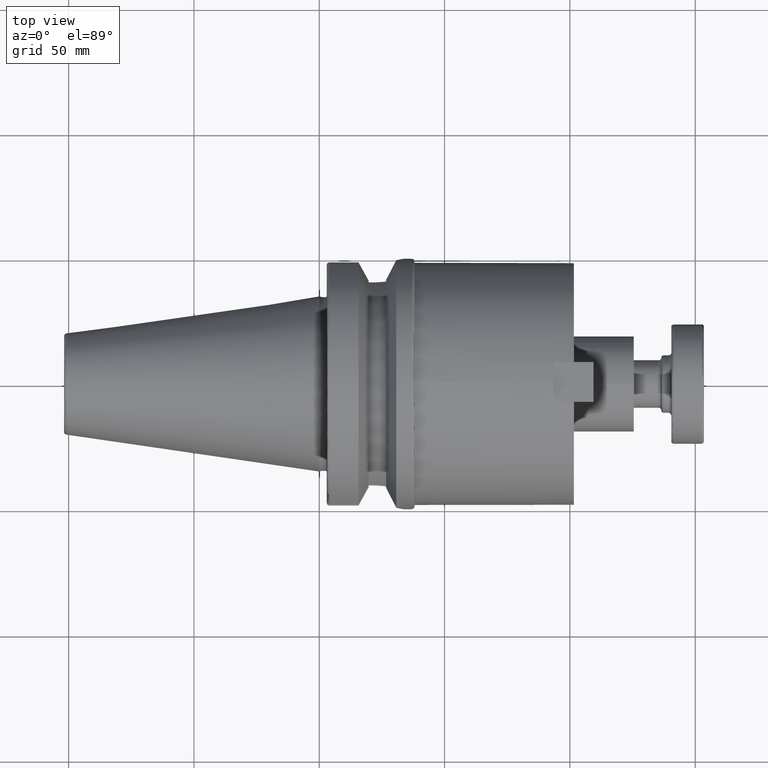
[diagram: clean part render]
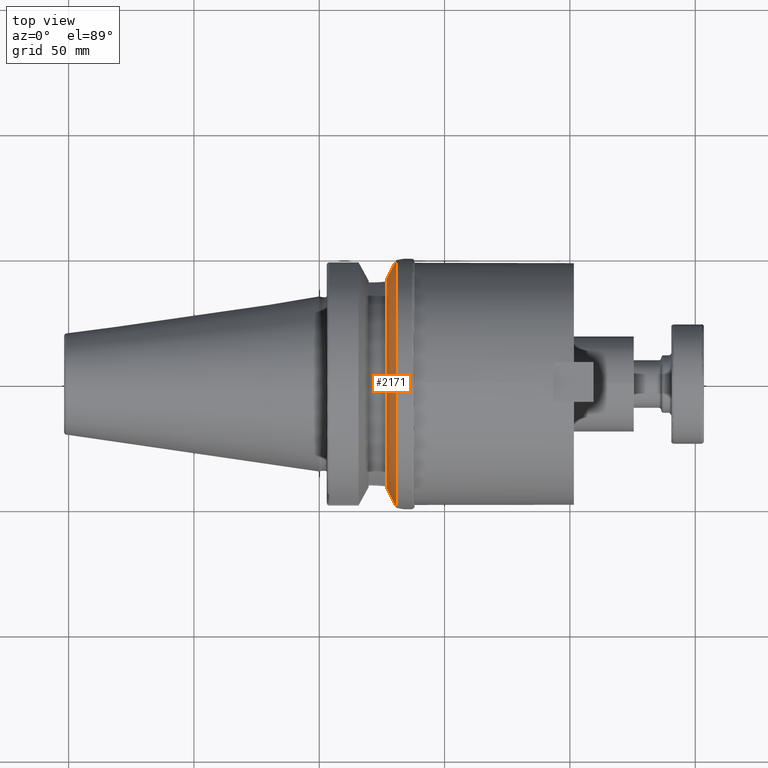
[diagram: same view with one face highlighted and labeled with its STEP entity id]
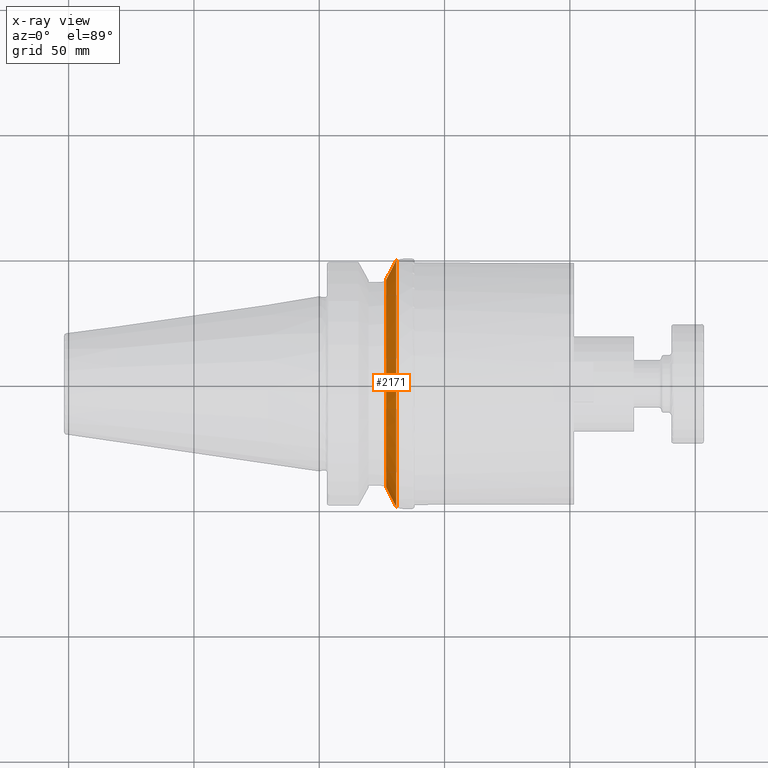
[diagram: x-ray of the same camera — body ghosted, the highlighted face saturated]
A machine part, top view. The second image highlights one B-rep face of the part: STEP entity #2171.
The next image is the same camera in x-ray: the body ghosted, the highlighted face saturated — about 0% of this face is hidden behind the body in this view.
In plain terms, the highlighted conical surface has half-angle 60.125 deg.
Its self-contained STEP definition (entity closure, byte-faithful):
#467=B_SPLINE_CURVE_WITH_KNOTS('',3,(#3512,#3513,#3514,#3515,#3516,#3517),
 .UNSPECIFIED.,.F.,.F.,(4,2,4),(1.70597184072793,2.24802424732131,2.60708937353861),
 .UNSPECIFIED.);
#476=B_SPLINE_CURVE_WITH_KNOTS('',3,(#3671,#3672,#3673,#3674,#3675,#3676),
 .UNSPECIFIED.,.F.,.F.,(4,2,4),(4.84387686434585,5.20294199056316,5.74499439715654),
 .UNSPECIFIED.);
#515=CONICAL_SURFACE('',#2461,46.4904524201025,1.04937921276159);
#566=CIRCLE('',#2440,50.);
#576=CIRCLE('',#2462,42.9809048402051);
#704=FACE_OUTER_BOUND('',#817,.T.);
#817=EDGE_LOOP('',(#1763,#1764,#1765,#1766));
#1179=VERTEX_POINT('',#3504);
#1180=VERTEX_POINT('',#3511);
#1200=VERTEX_POINT('',#3591);
#1213=VERTEX_POINT('',#3669);
#1364=EDGE_CURVE('',#1180,#1179,#467,.T.);
#1389=EDGE_CURVE('',#1200,#1179,#566,.T.);
#1411=EDGE_CURVE('',#1200,#1213,#476,.T.);
#1422=EDGE_CURVE('',#1213,#1180,#576,.T.);
#1763=ORIENTED_EDGE('',*,*,#1364,.T.);
#1764=ORIENTED_EDGE('',*,*,#1389,.F.);
#1765=ORIENTED_EDGE('',*,*,#1411,.T.);
#1766=ORIENTED_EDGE('',*,*,#1422,.T.);
#2171=ADVANCED_FACE('',(#704),#515,.T.);
#2440=AXIS2_PLACEMENT_3D('',#3602,#2825,#2826);
#2461=AXIS2_PLACEMENT_3D('',#3708,#2882,#2883);
#2462=AXIS2_PLACEMENT_3D('',#3709,#2884,#2885);
#2825=DIRECTION('center_axis',(1.,0.,0.));
#2826=DIRECTION('ref_axis',(0.,0.,-1.));
#2882=DIRECTION('center_axis',(1.,0.,0.));
#2883=DIRECTION('ref_axis',(0.,1.,0.));
#2884=DIRECTION('center_axis',(1.,0.,0.));
#2885=DIRECTION('ref_axis',(0.,0.,-1.));
#3504=CARTESIAN_POINT('',(30.732084412946,-49.2614843635149,8.56190155883473));
#3511=CARTESIAN_POINT('',(26.7,-41.388865421545,11.5896505555603));
#3512=CARTESIAN_POINT('Ctrl Pts',(26.7,-41.388865421545,11.5896505555603));
#3513=CARTESIAN_POINT('Ctrl Pts',(27.5575735603595,-43.0541580056802,11.1789795661998));
#3514=CARTESIAN_POINT('Ctrl Pts',(28.3833872619345,-44.664615633924,10.6667071522788));
#3515=CARTESIAN_POINT('Ctrl Pts',(29.6692681874855,-47.1784655131599,9.64228850610742));
#3516=CARTESIAN_POINT('Ctrl Pts',(30.2082188762695,-48.2339624041648,9.14818764948576));
#3517=CARTESIAN_POINT('Ctrl Pts',(30.732084412946,-49.2614843635149,8.56190155883473));
#3591=CARTESIAN_POINT('',(30.732084412946,49.2614843635149,8.56190155883473));
#3602=CARTESIAN_POINT('Origin',(30.732084412946,0.,0.));
#3669=CARTESIAN_POINT('',(26.7,41.388865421545,11.5896505555603));
#3671=CARTESIAN_POINT('Ctrl Pts',(30.732084412946,49.2614843635149,8.56190155883472));
#3672=CARTESIAN_POINT('Ctrl Pts',(30.2082188762695,48.2339624041648,9.14818764948575));
#3673=CARTESIAN_POINT('Ctrl Pts',(29.6692681874855,47.1784655131599,9.64228850610742));
#3674=CARTESIAN_POINT('Ctrl Pts',(28.3833872619345,44.664615633924,10.6667071522788));
#3675=CARTESIAN_POINT('Ctrl Pts',(27.5575735603595,43.0541580056802,11.1789795661998));
#3676=CARTESIAN_POINT('Ctrl Pts',(26.7,41.388865421545,11.5896505555603));
#3708=CARTESIAN_POINT('Origin',(28.716042206473,0.,0.));
#3709=CARTESIAN_POINT('Origin',(26.7,0.,0.));